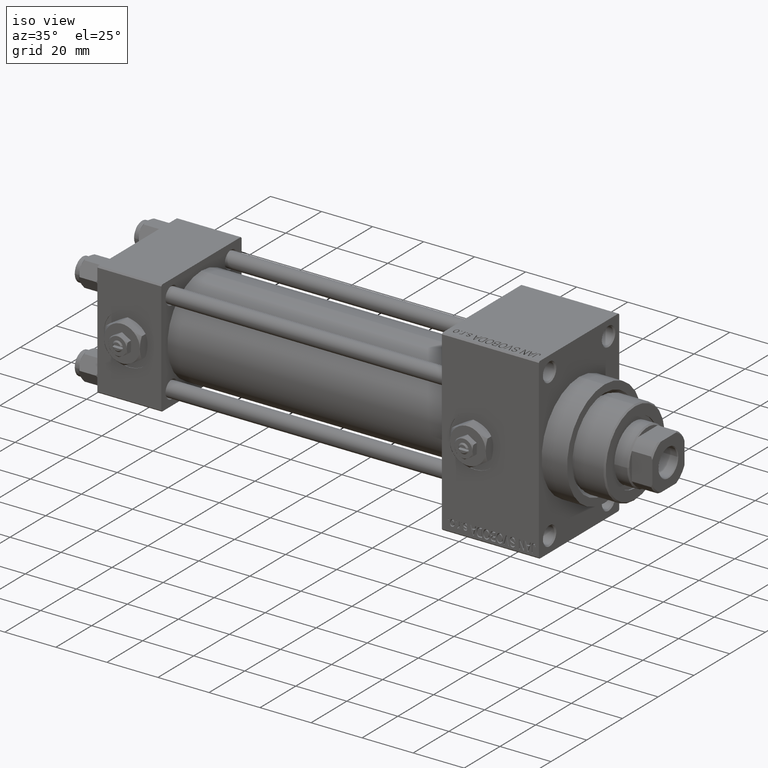
[diagram: clean part render]
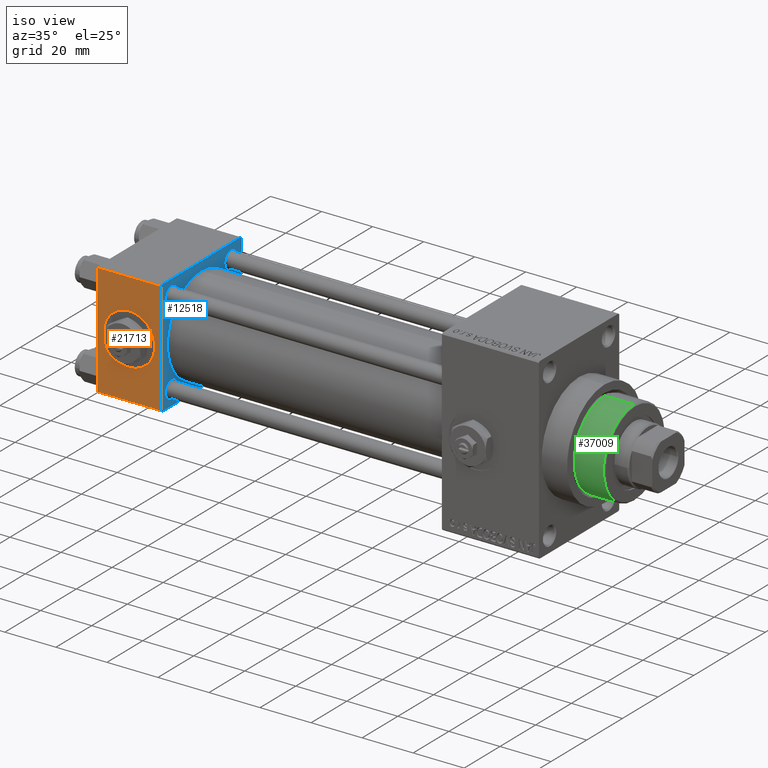
[diagram: same view with three faces highlighted in distinct colors, each labeled with its STEP entity id]
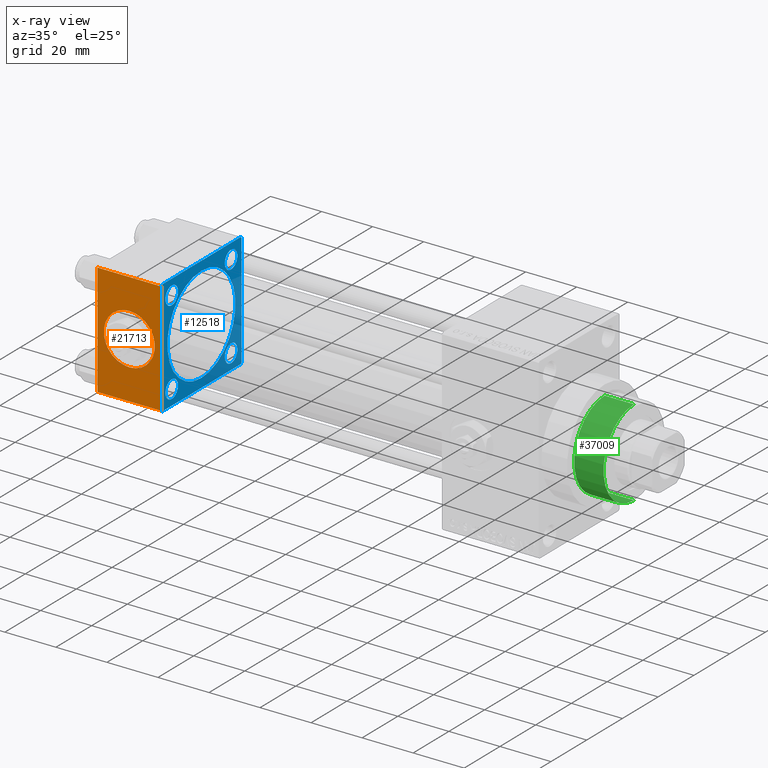
[diagram: x-ray of the same camera — body ghosted, the three highlighted faces saturated]
A machine part, iso view with three faces highlighted in distinct colors.
The next image is the same camera in x-ray (body ghosted, the three faces saturated) — at least one of them is partly hidden behind the body in this view.
Their STEP definitions:

[orange] entity #21713 — the highlighted planar face has unit normal (0, 1, 0).
#411 = LINE ( 'NONE', #19253, #14603 ) ;
#2524 = ORIENTED_EDGE ( 'NONE', *, *, #40350, .T. ) ;
#3118 = EDGE_CURVE ( 'NONE', #41661, #13308, #28669, .T. ) ;
#3855 = LINE ( 'NONE', #18969, #43486 ) ;
#4507 = DIRECTION ( 'NONE',  ( 0.000000000000000000, 0.000000000000000000, -1.000000000000000000 ) ) ;
#5462 = ORIENTED_EDGE ( 'NONE', *, *, #3118, .F. ) ;
#6568 = DIRECTION ( 'NONE',  ( 0.000000000000000000, 0.000000000000000000, -1.000000000000000000 ) ) ;
#8620 = ORIENTED_EDGE ( 'NONE', *, *, #15317, .T. ) ;
#8808 = EDGE_CURVE ( 'NONE', #47285, #42556, #411, .T. ) ;
#8970 = FACE_BOUND ( 'NONE', #37272, .T. ) ;
#9766 = AXIS2_PLACEMENT_3D ( 'NONE', #31551, #23348, #4507 ) ;
#9936 = PLANE ( 'NONE',  #23206 ) ;
#12933 = ORIENTED_EDGE ( 'NONE', *, *, #40334, .T. ) ;
#13308 = VERTEX_POINT ( 'NONE', #20649 ) ;
#14418 = EDGE_LOOP ( 'NONE', ( #8620, #12933, #35521, #2524 ) ) ;
#14603 = VECTOR ( 'NONE', #30205, 1000.000000000000000 ) ;
#15089 = CARTESIAN_POINT ( 'NONE',  ( 0.000000000000000000, -22.50000000000000000, 22.00000000000000000 ) ) ;
#15317 = EDGE_CURVE ( 'NONE', #15824, #15588, #48800, .T. ) ;
#15395 = CARTESIAN_POINT ( 'NONE',  ( 25.00000000000000000, -22.50000000000000000, -21.99999999999997158 ) ) ;
#15542 = DIRECTION ( 'NONE',  ( 0.000000000000000000, -1.000000000000000000, -8.673617379884036705E-17 ) ) ;
#15588 = VERTEX_POINT ( 'NONE', #40050 ) ;
#15824 = VERTEX_POINT ( 'NONE', #15089 ) ;
#18477 = CARTESIAN_POINT ( 'NONE',  ( 25.00000000000000000, -22.50000000000000000, 22.00000000000000000 ) ) ;
#18969 = CARTESIAN_POINT ( 'NONE',  ( 25.00000000000000000, -22.50000000000000000, -21.99999999999998579 ) ) ;
#19208 = DIRECTION ( 'NONE',  ( -1.000000000000000000, 0.000000000000000000, 0.000000000000000000 ) ) ;
#19253 = CARTESIAN_POINT ( 'NONE',  ( 25.00000000000000000, -22.50000000000000000, 22.50000000000000000 ) ) ;
#20649 = CARTESIAN_POINT ( 'NONE',  ( 12.50000000000000000, -22.50000000000000000, -9.999999999999996447 ) ) ;
#21648 = EDGE_CURVE ( 'NONE', #13308, #41661, #27981, .T. ) ;
#21713 = ADVANCED_FACE ( 'NONE', ( #8970, #36014 ), #9936, .F. ) ;
#22607 = ORIENTED_EDGE ( 'NONE', *, *, #21648, .F. ) ;
#23176 = LINE ( 'NONE', #18477, #40319 ) ;
#23206 = AXIS2_PLACEMENT_3D ( 'NONE', #24570, #40231, #28315 ) ;
#23223 = DIRECTION ( 'NONE',  ( 0.000000000000000000, 0.000000000000000000, -1.000000000000000000 ) ) ;
#23348 = DIRECTION ( 'NONE',  ( 0.000000000000000000, -1.000000000000000000, -8.673617379884036705E-17 ) ) ;
#24570 = CARTESIAN_POINT ( 'NONE',  ( 25.00000000000000000, -22.50000000000000000, 22.50000000000000000 ) ) ;
#27981 = CIRCLE ( 'NONE', #9766, 9.999999999999996447 ) ;
#28315 = DIRECTION ( 'NONE',  ( 0.000000000000000000, -0.000000000000000000, 1.000000000000000000 ) ) ;
#28669 = CIRCLE ( 'NONE', #45324, 9.999999999999996447 ) ;
#30205 = DIRECTION ( 'NONE',  ( 0.000000000000000000, 0.000000000000000000, -1.000000000000000000 ) ) ;
#31551 = CARTESIAN_POINT ( 'NONE',  ( 12.50000000000000000, -22.50000000000000000, 0.000000000000000000 ) ) ;
#31820 = CARTESIAN_POINT ( 'NONE',  ( 12.50000000000000178, -22.50000000000000000, 9.999999999999996447 ) ) ;
#33708 = CARTESIAN_POINT ( 'NONE',  ( 12.50000000000000000, -22.50000000000000000, 0.000000000000000000 ) ) ;
#34135 = DIRECTION ( 'NONE',  ( 1.000000000000000000, 0.000000000000000000, 0.000000000000000000 ) ) ;
#35521 = ORIENTED_EDGE ( 'NONE', *, *, #8808, .F. ) ;
#36014 = FACE_OUTER_BOUND ( 'NONE', #14418, .T. ) ;
#37272 = EDGE_LOOP ( 'NONE', ( #22607, #5462 ) ) ;
#38521 = CARTESIAN_POINT ( 'NONE',  ( 25.00000000000000000, -22.50000000000000000, 22.00000000000000000 ) ) ;
#39287 = VECTOR ( 'NONE', #6568, 1000.000000000000000 ) ;
#40050 = CARTESIAN_POINT ( 'NONE',  ( 0.000000000000000000, -22.50000000000000000, -21.99999999999997158 ) ) ;
#40231 = DIRECTION ( 'NONE',  ( -0.000000000000000000, 1.000000000000000000, 0.000000000000000000 ) ) ;
#40319 = VECTOR ( 'NONE', #19208, 1000.000000000000000 ) ;
#40334 = EDGE_CURVE ( 'NONE', #15588, #42556, #3855, .T. ) ;
#40350 = EDGE_CURVE ( 'NONE', #47285, #15824, #23176, .T. ) ;
#41661 = VERTEX_POINT ( 'NONE', #31820 ) ;
#42556 = VERTEX_POINT ( 'NONE', #15395 ) ;
#43486 = VECTOR ( 'NONE', #34135, 1000.000000000000000 ) ;
#45324 = AXIS2_PLACEMENT_3D ( 'NONE', #33708, #15542, #23223 ) ;
#47285 = VERTEX_POINT ( 'NONE', #38521 ) ;
#48554 = CARTESIAN_POINT ( 'NONE',  ( 0.000000000000000000, -22.50000000000000000, 22.50000000000000000 ) ) ;
#48800 = LINE ( 'NONE', #48554, #39287 ) ;

[blue] entity #12518 — the highlighted planar face has unit normal (-1, 0, 0).
#354 = DIRECTION ( 'NONE',  ( 0.000000000000000000, -1.000000000000000000, -2.312964634635742957E-16 ) ) ;
#411 = LINE ( 'NONE', #19253, #14603 ) ;
#599 = LINE ( 'NONE', #31108, #25355 ) ;
#1063 = DIRECTION ( 'NONE',  ( 0.000000000000000000, 0.000000000000000000, 1.000000000000000000 ) ) ;
#1310 = CARTESIAN_POINT ( 'NONE',  ( 25.00000000000000000, -16.59999999999999076, 16.60000000000000853 ) ) ;
#1448 = EDGE_CURVE ( 'NONE', #24298, #20267, #31002, .T. ) ;
#1452 = LINE ( 'NONE', #24733, #22638 ) ;
#1937 = EDGE_CURVE ( 'NONE', #4219, #38250, #12381, .T. ) ;
#2279 = EDGE_CURVE ( 'NONE', #15383, #17018, #38152, .T. ) ;
#2363 = CARTESIAN_POINT ( 'NONE',  ( 25.00000000000000000, 0.000000000000000000, 0.000000000000000000 ) ) ;
#2600 = FACE_BOUND ( 'NONE', #8181, .T. ) ;
#2809 = CIRCLE ( 'NONE', #35306, 3.499999999999978684 ) ;
#3257 = EDGE_LOOP ( 'NONE', ( #12565, #6426 ) ) ;
#4209 = CIRCLE ( 'NONE', #20834, 3.500000000000003109 ) ;
#4219 = VERTEX_POINT ( 'NONE', #32651 ) ;
#5897 = VECTOR ( 'NONE', #20512, 1000.000000000000000 ) ;
#6274 = CARTESIAN_POINT ( 'NONE',  ( 25.00000000000000000, -16.59999999999999076, -16.60000000000000853 ) ) ;
#6318 = CARTESIAN_POINT ( 'NONE',  ( 25.00000000000000000, 16.59999999999999787, 20.10000000000000853 ) ) ;
#6426 = ORIENTED_EDGE ( 'NONE', *, *, #15293, .T. ) ;
#6514 = DIRECTION ( 'NONE',  ( -0.000000000000000000, -0.7071067811865525687, -0.7071067811865425767 ) ) ;
#6539 = DIRECTION ( 'NONE',  ( -1.000000000000000000, 0.000000000000000000, -0.000000000000000000 ) ) ;
#6597 = ORIENTED_EDGE ( 'NONE', *, *, #18146, .T. ) ;
#6846 = ORIENTED_EDGE ( 'NONE', *, *, #1937, .T. ) ;
#8181 = EDGE_LOOP ( 'NONE', ( #38910, #40956 ) ) ;
#8324 = DIRECTION ( 'NONE',  ( 0.000000000000000000, 0.000000000000000000, 1.000000000000000000 ) ) ;
#8367 = EDGE_CURVE ( 'NONE', #24590, #47285, #32098, .T. ) ;
#8585 = CARTESIAN_POINT ( 'NONE',  ( 25.00000000000000000, 22.50000000000000000, 22.50000000000000355 ) ) ;
#8808 = EDGE_CURVE ( 'NONE', #47285, #42556, #411, .T. ) ;
#9014 = DIRECTION ( 'NONE',  ( -1.000000000000000000, 0.000000000000000000, -0.000000000000000000 ) ) ;
#9860 = CARTESIAN_POINT ( 'NONE',  ( 25.00000000000000000, -16.59999999999999076, 20.09999999999998721 ) ) ;
#9963 = VERTEX_POINT ( 'NONE', #26788 ) ;
#10260 = VECTOR ( 'NONE', #20155, 1000.000000000000000 ) ;
#10521 = DIRECTION ( 'NONE',  ( 1.000000000000000000, -0.000000000000000000, 0.000000000000000000 ) ) ;
#10582 = AXIS2_PLACEMENT_3D ( 'NONE', #22386, #17928, #48268 ) ;
#10813 = ORIENTED_EDGE ( 'NONE', *, *, #14890, .T. ) ;
#11864 = ORIENTED_EDGE ( 'NONE', *, *, #8808, .T. ) ;
#12048 = DIRECTION ( 'NONE',  ( 1.000000000000000000, -0.000000000000000000, 0.000000000000000000 ) ) ;
#12381 = LINE ( 'NONE', #42689, #27835 ) ;
#12423 = ORIENTED_EDGE ( 'NONE', *, *, #1448, .F. ) ;
#12518 = ADVANCED_FACE ( 'NONE', ( #20720, #2600, #21205, #36871, #21441, #39865 ), #29169, .F. ) ;
#12565 = ORIENTED_EDGE ( 'NONE', *, *, #19955, .T. ) ;
#13016 = ORIENTED_EDGE ( 'NONE', *, *, #28960, .F. ) ;
#13054 = CARTESIAN_POINT ( 'NONE',  ( 25.00000000000000000, 16.59999999999999787, -16.60000000000000497 ) ) ;
#13925 = ORIENTED_EDGE ( 'NONE', *, *, #44807, .F. ) ;
#14429 = VERTEX_POINT ( 'NONE', #6318 ) ;
#14603 = VECTOR ( 'NONE', #30205, 1000.000000000000000 ) ;
#14857 = VERTEX_POINT ( 'NONE', #9860 ) ;
#14890 = EDGE_CURVE ( 'NONE', #23423, #45100, #1452, .T. ) ;
#15293 = EDGE_CURVE ( 'NONE', #14857, #31397, #2809, .T. ) ;
#15347 = CARTESIAN_POINT ( 'NONE',  ( 24.99999999999999289, -2.752562955852396712E-16, -19.00000000000000000 ) ) ;
#15383 = VERTEX_POINT ( 'NONE', #42072 ) ;
#15395 = CARTESIAN_POINT ( 'NONE',  ( 25.00000000000000000, -22.50000000000000000, -21.99999999999997158 ) ) ;
#15771 = EDGE_LOOP ( 'NONE', ( #13016, #12423 ) ) ;
#15980 = ORIENTED_EDGE ( 'NONE', *, *, #42370, .F. ) ;
#16088 = DIRECTION ( 'NONE',  ( 0.000000000000000000, 0.000000000000000000, 1.000000000000000000 ) ) ;
#16262 = CARTESIAN_POINT ( 'NONE',  ( 25.00000000000000000, -21.99999999999997158, -22.50000000000000711 ) ) ;
#17018 = VERTEX_POINT ( 'NONE', #29008 ) ;
#17057 = CARTESIAN_POINT ( 'NONE',  ( 25.00000000000000000, -16.59999999999999076, 13.10000000000002807 ) ) ;
#17664 = DIRECTION ( 'NONE',  ( -1.000000000000000000, 0.000000000000000000, -0.000000000000000000 ) ) ;
#17691 = CARTESIAN_POINT ( 'NONE',  ( 25.00000000000000000, 16.59999999999999787, 16.60000000000000497 ) ) ;
#17928 = DIRECTION ( 'NONE',  ( -1.000000000000000000, 0.000000000000000000, -0.000000000000000000 ) ) ;
#18146 = EDGE_CURVE ( 'NONE', #36887, #9963, #48942, .T. ) ;
#18197 = DIRECTION ( 'NONE',  ( 0.000000000000000000, 0.000000000000000000, 1.000000000000000000 ) ) ;
#18618 = ORIENTED_EDGE ( 'NONE', *, *, #8367, .T. ) ;
#18828 = CIRCLE ( 'NONE', #30711, 3.499999999999978684 ) ;
#19091 = AXIS2_PLACEMENT_3D ( 'NONE', #13054, #43603, #47809 ) ;
#19253 = CARTESIAN_POINT ( 'NONE',  ( 25.00000000000000000, -22.50000000000000000, 22.50000000000000000 ) ) ;
#19664 = CARTESIAN_POINT ( 'NONE',  ( 25.00000000000000000, 22.50000000000000000, 22.50000000000000355 ) ) ;
#19768 = CARTESIAN_POINT ( 'NONE',  ( 25.00000000000000000, 21.99999999999999289, 22.50000000000000355 ) ) ;
#19955 = EDGE_CURVE ( 'NONE', #31397, #14857, #18828, .T. ) ;
#20155 = DIRECTION ( 'NONE',  ( 0.000000000000000000, 0.000000000000000000, -1.000000000000000000 ) ) ;
#20267 = VERTEX_POINT ( 'NONE', #28778 ) ;
#20512 = DIRECTION ( 'NONE',  ( 0.000000000000000000, 0.7071067811865426878, -0.7071067811865524577 ) ) ;
#20720 = FACE_BOUND ( 'NONE', #47684, .T. ) ;
#20834 = AXIS2_PLACEMENT_3D ( 'NONE', #17691, #6539, #21409 ) ;
#21205 = FACE_BOUND ( 'NONE', #3257, .T. ) ;
#21348 = CARTESIAN_POINT ( 'NONE',  ( 25.00000000000000000, 16.59999999999999787, 13.10000000000000142 ) ) ;
#21409 = DIRECTION ( 'NONE',  ( 0.000000000000000000, 0.000000000000000000, 1.000000000000000000 ) ) ;
#21441 = FACE_BOUND ( 'NONE', #15771, .T. ) ;
#21507 = ORIENTED_EDGE ( 'NONE', *, *, #27553, .T. ) ;
#21508 = EDGE_CURVE ( 'NONE', #41025, #14429, #4209, .T. ) ;
#22149 = ORIENTED_EDGE ( 'NONE', *, *, #38765, .T. ) ;
#22386 = CARTESIAN_POINT ( 'NONE',  ( 25.00000000000000000, 16.59999999999999787, 16.60000000000000497 ) ) ;
#22638 = VECTOR ( 'NONE', #47134, 1000.000000000000000 ) ;
#22739 = CARTESIAN_POINT ( 'NONE',  ( 25.00000000000000000, -21.99999999999997868, 22.50000000000000000 ) ) ;
#23423 = VERTEX_POINT ( 'NONE', #26555 ) ;
#23698 = DIRECTION ( 'NONE',  ( 0.000000000000000000, -1.000000000000000000, -7.709882115452476934E-17 ) ) ;
#23767 = DIRECTION ( 'NONE',  ( 0.000000000000000000, -0.7071067811865474617, 0.7071067811865474617 ) ) ;
#24298 = VERTEX_POINT ( 'NONE', #15347 ) ;
#24590 = VERTEX_POINT ( 'NONE', #22739 ) ;
#24733 = CARTESIAN_POINT ( 'NONE',  ( 25.00000000000000000, 22.50000000000000000, -21.99999999999998224 ) ) ;
#25355 = VECTOR ( 'NONE', #354, 1000.000000000000000 ) ;
#25644 = VECTOR ( 'NONE', #6514, 999.9999999999998863 ) ;
#25666 = DIRECTION ( 'NONE',  ( -1.000000000000000000, 0.000000000000000000, -0.000000000000000000 ) ) ;
#26035 = EDGE_CURVE ( 'NONE', #14429, #41025, #31975, .T. ) ;
#26555 = CARTESIAN_POINT ( 'NONE',  ( 25.00000000000000000, 21.99999999999999289, -22.49999999999999645 ) ) ;
#26605 = CARTESIAN_POINT ( 'NONE',  ( 25.00000000000000000, 22.50000000000000000, -21.99999999999996803 ) ) ;
#26687 = CARTESIAN_POINT ( 'NONE',  ( 24.99999999999999289, -2.602085213965210642E-15, 0.000000000000000000 ) ) ;
#26788 = CARTESIAN_POINT ( 'NONE',  ( 25.00000000000000000, -16.59999999999999076, -20.09999999999998366 ) ) ;
#27024 = CARTESIAN_POINT ( 'NONE',  ( 25.00000000000000000, 16.59999999999999787, -16.60000000000000497 ) ) ;
#27553 = EDGE_CURVE ( 'NONE', #42556, #30227, #28466, .T. ) ;
#27835 = VECTOR ( 'NONE', #23767, 1000.000000000000114 ) ;
#27977 = EDGE_LOOP ( 'NONE', ( #36898, #40457 ) ) ;
#28014 = DIRECTION ( 'NONE',  ( -1.000000000000000000, 0.000000000000000000, -0.000000000000000000 ) ) ;
#28138 = CARTESIAN_POINT ( 'NONE',  ( 25.00000000000000000, -22.50000000000000000, 22.00000000000000000 ) ) ;
#28466 = LINE ( 'NONE', #35431, #5897 ) ;
#28778 = CARTESIAN_POINT ( 'NONE',  ( 24.99999999999999289, -2.602085213965210642E-15, 19.00000000000000000 ) ) ;
#28960 = EDGE_CURVE ( 'NONE', #20267, #24298, #30483, .T. ) ;
#29008 = CARTESIAN_POINT ( 'NONE',  ( 25.00000000000000000, 16.59999999999999787, -13.10000000000000142 ) ) ;
#29169 = PLANE ( 'NONE',  #45541 ) ;
#30102 = CARTESIAN_POINT ( 'NONE',  ( 25.00000000000000000, -16.59999999999999076, -13.10000000000003162 ) ) ;
#30205 = DIRECTION ( 'NONE',  ( 0.000000000000000000, 0.000000000000000000, -1.000000000000000000 ) ) ;
#30227 = VERTEX_POINT ( 'NONE', #16262 ) ;
#30483 = CIRCLE ( 'NONE', #35254, 19.00000000000000000 ) ;
#30711 = AXIS2_PLACEMENT_3D ( 'NONE', #1310, #9014, #1063 ) ;
#31002 = CIRCLE ( 'NONE', #38934, 19.00000000000000000 ) ;
#31108 = CARTESIAN_POINT ( 'NONE',  ( 25.00000000000000000, 22.50000000000000000, -22.49999999999999645 ) ) ;
#31397 = VERTEX_POINT ( 'NONE', #17057 ) ;
#31456 = DIRECTION ( 'NONE',  ( -1.000000000000000000, 0.000000000000000000, -0.000000000000000000 ) ) ;
#31828 = LINE ( 'NONE', #19664, #10260 ) ;
#31975 = CIRCLE ( 'NONE', #10582, 3.500000000000003109 ) ;
#32098 = LINE ( 'NONE', #28138, #25644 ) ;
#32651 = CARTESIAN_POINT ( 'NONE',  ( 25.00000000000000000, 22.50000000000000000, 21.99999999999999645 ) ) ;
#32879 = DIRECTION ( 'NONE',  ( 0.000000000000000000, 0.000000000000000000, 1.000000000000000000 ) ) ;
#35195 = DIRECTION ( 'NONE',  ( 0.000000000000000000, 0.000000000000000000, 1.000000000000000000 ) ) ;
#35254 = AXIS2_PLACEMENT_3D ( 'NONE', #45293, #10521, #18197 ) ;
#35293 = EDGE_CURVE ( 'NONE', #38250, #24590, #42612, .T. ) ;
#35306 = AXIS2_PLACEMENT_3D ( 'NONE', #44567, #25666, #32879 ) ;
#35431 = CARTESIAN_POINT ( 'NONE',  ( 25.00000000000000000, -21.99999999999998579, -22.50000000000000711 ) ) ;
#36871 = FACE_BOUND ( 'NONE', #27977, .T. ) ;
#36887 = VERTEX_POINT ( 'NONE', #30102 ) ;
#36898 = ORIENTED_EDGE ( 'NONE', *, *, #21508, .T. ) ;
#37139 = AXIS2_PLACEMENT_3D ( 'NONE', #27024, #28014, #16088 ) ;
#37833 = AXIS2_PLACEMENT_3D ( 'NONE', #46386, #31456, #35195 ) ;
#38152 = CIRCLE ( 'NONE', #19091, 3.500000000000003109 ) ;
#38250 = VERTEX_POINT ( 'NONE', #19768 ) ;
#38521 = CARTESIAN_POINT ( 'NONE',  ( 25.00000000000000000, -22.50000000000000000, 22.00000000000000000 ) ) ;
#38765 = EDGE_CURVE ( 'NONE', #9963, #36887, #44262, .T. ) ;
#38910 = ORIENTED_EDGE ( 'NONE', *, *, #2279, .T. ) ;
#38934 = AXIS2_PLACEMENT_3D ( 'NONE', #26687, #12048, #8324 ) ;
#38954 = EDGE_LOOP ( 'NONE', ( #13925, #10813, #15980, #6846, #43150, #18618, #11864, #21507 ) ) ;
#39865 = FACE_OUTER_BOUND ( 'NONE', #38954, .T. ) ;
#40457 = ORIENTED_EDGE ( 'NONE', *, *, #26035, .T. ) ;
#40956 = ORIENTED_EDGE ( 'NONE', *, *, #48536, .T. ) ;
#41025 = VERTEX_POINT ( 'NONE', #21348 ) ;
#41038 = DIRECTION ( 'NONE',  ( 0.000000000000000000, 0.000000000000000000, 1.000000000000000000 ) ) ;
#41857 = VECTOR ( 'NONE', #23698, 1000.000000000000000 ) ;
#42072 = CARTESIAN_POINT ( 'NONE',  ( 25.00000000000000000, 16.59999999999999787, -20.10000000000000853 ) ) ;
#42370 = EDGE_CURVE ( 'NONE', #4219, #45100, #31828, .T. ) ;
#42556 = VERTEX_POINT ( 'NONE', #15395 ) ;
#42612 = LINE ( 'NONE', #8585, #41857 ) ;
#42689 = CARTESIAN_POINT ( 'NONE',  ( 25.00000000000000000, 21.99999999999999289, 22.50000000000000355 ) ) ;
#43150 = ORIENTED_EDGE ( 'NONE', *, *, #35293, .T. ) ;
#43498 = CIRCLE ( 'NONE', #37139, 3.500000000000003109 ) ;
#43603 = DIRECTION ( 'NONE',  ( -1.000000000000000000, 0.000000000000000000, -0.000000000000000000 ) ) ;
#43840 = DIRECTION ( 'NONE',  ( -0.000000000000000000, 0.000000000000000000, 1.000000000000000000 ) ) ;
#44088 = DIRECTION ( 'NONE',  ( -1.000000000000000000, 0.000000000000000000, -0.000000000000000000 ) ) ;
#44262 = CIRCLE ( 'NONE', #45826, 3.499999999999975131 ) ;
#44567 = CARTESIAN_POINT ( 'NONE',  ( 25.00000000000000000, -16.59999999999999076, 16.60000000000000853 ) ) ;
#44807 = EDGE_CURVE ( 'NONE', #23423, #30227, #599, .T. ) ;
#45100 = VERTEX_POINT ( 'NONE', #26605 ) ;
#45293 = CARTESIAN_POINT ( 'NONE',  ( 24.99999999999999289, -2.602085213965210642E-15, 0.000000000000000000 ) ) ;
#45541 = AXIS2_PLACEMENT_3D ( 'NONE', #2363, #44088, #43840 ) ;
#45826 = AXIS2_PLACEMENT_3D ( 'NONE', #6274, #17664, #41038 ) ;
#46386 = CARTESIAN_POINT ( 'NONE',  ( 25.00000000000000000, -16.59999999999999076, -16.60000000000000853 ) ) ;
#47134 = DIRECTION ( 'NONE',  ( -0.000000000000000000, 0.7071067811865426878, 0.7071067811865524577 ) ) ;
#47285 = VERTEX_POINT ( 'NONE', #38521 ) ;
#47684 = EDGE_LOOP ( 'NONE', ( #22149, #6597 ) ) ;
#47809 = DIRECTION ( 'NONE',  ( 0.000000000000000000, 0.000000000000000000, 1.000000000000000000 ) ) ;
#48268 = DIRECTION ( 'NONE',  ( 0.000000000000000000, 0.000000000000000000, 1.000000000000000000 ) ) ;
#48536 = EDGE_CURVE ( 'NONE', #17018, #15383, #43498, .T. ) ;
#48942 = CIRCLE ( 'NONE', #37833, 3.499999999999975131 ) ;

[green] entity #37009 — the highlighted cylindrical surface (partial cylindrical patch) has radius 17 mm, axis along (-1, 0, 0).
#2999 = DIRECTION ( 'NONE',  ( 1.000000000000000000, 0.000000000000000000, 0.000000000000000000 ) ) ;
#4053 = AXIS2_PLACEMENT_3D ( 'NONE', #6467, #21832, #2999 ) ;
#4522 = AXIS2_PLACEMENT_3D ( 'NONE', #40489, #18352, #40730 ) ;
#4837 = CIRCLE ( 'NONE', #4053, 17.00000000000000000 ) ;
#6467 = CARTESIAN_POINT ( 'NONE',  ( 0.000000000000000000, 0.000000000000000000, 43.25999999999999801 ) ) ;
#6950 = CIRCLE ( 'NONE', #42658, 17.00000000000000000 ) ;
#9346 = VECTOR ( 'NONE', #15715, 1000.000000000000000 ) ;
#12053 = EDGE_CURVE ( 'NONE', #27218, #25026, #26531, .T. ) ;
#15715 = DIRECTION ( 'NONE',  ( -0.000000000000000000, -0.000000000000000000, -1.000000000000000000 ) ) ;
#16106 = CARTESIAN_POINT ( 'NONE',  ( -17.00000000000000000, 0.000000000000000000, 54.76000000000001222 ) ) ;
#18352 = DIRECTION ( 'NONE',  ( -0.000000000000000000, -0.000000000000000000, -1.000000000000000000 ) ) ;
#19769 = EDGE_LOOP ( 'NONE', ( #37641, #44929, #45332, #45608 ) ) ;
#20557 = EDGE_CURVE ( 'NONE', #27218, #28599, #6950, .T. ) ;
#21148 = CARTESIAN_POINT ( 'NONE',  ( -17.00000000000000000, 0.000000000000000000, 43.25999999999999801 ) ) ;
#21724 = CARTESIAN_POINT ( 'NONE',  ( 17.00000000000000000, 2.081899558550500280E-15, 54.76000000000001222 ) ) ;
#21832 = DIRECTION ( 'NONE',  ( 0.000000000000000000, 0.000000000000000000, 1.000000000000000000 ) ) ;
#23161 = VERTEX_POINT ( 'NONE', #36388 ) ;
#25026 = VERTEX_POINT ( 'NONE', #21148 ) ;
#26531 = LINE ( 'NONE', #41700, #43934 ) ;
#27218 = VERTEX_POINT ( 'NONE', #16106 ) ;
#28599 = VERTEX_POINT ( 'NONE', #21724 ) ;
#28814 = FACE_OUTER_BOUND ( 'NONE', #19769, .T. ) ;
#30612 = LINE ( 'NONE', #41818, #9346 ) ;
#35592 = EDGE_CURVE ( 'NONE', #28599, #23161, #30612, .T. ) ;
#36263 = CYLINDRICAL_SURFACE ( 'NONE', #4522, 17.00000000000000000 ) ;
#36388 = CARTESIAN_POINT ( 'NONE',  ( 17.00000000000000000, 2.081899558550500280E-15, 43.25999999999999801 ) ) ;
#37009 = ADVANCED_FACE ( 'NONE', ( #28814 ), #36263, .T. ) ;
#37641 = ORIENTED_EDGE ( 'NONE', *, *, #20557, .T. ) ;
#37732 = DIRECTION ( 'NONE',  ( -0.000000000000000000, -0.000000000000000000, -1.000000000000000000 ) ) ;
#38932 = DIRECTION ( 'NONE',  ( 0.000000000000000000, 0.000000000000000000, -1.000000000000000000 ) ) ;
#40489 = CARTESIAN_POINT ( 'NONE',  ( 0.000000000000000000, 0.000000000000000000, 55.26000000000000512 ) ) ;
#40730 = DIRECTION ( 'NONE',  ( -1.000000000000000000, 0.000000000000000000, 0.000000000000000000 ) ) ;
#41700 = CARTESIAN_POINT ( 'NONE',  ( -17.00000000000000000, 0.000000000000000000, 55.26000000000000512 ) ) ;
#41818 = CARTESIAN_POINT ( 'NONE',  ( 17.00000000000000000, 2.081899558550500280E-15, 55.26000000000000512 ) ) ;
#42431 = DIRECTION ( 'NONE',  ( 1.000000000000000000, 0.000000000000000000, 0.000000000000000000 ) ) ;
#42658 = AXIS2_PLACEMENT_3D ( 'NONE', #46148, #38932, #42431 ) ;
#43934 = VECTOR ( 'NONE', #37732, 1000.000000000000000 ) ;
#44929 = ORIENTED_EDGE ( 'NONE', *, *, #35592, .T. ) ;
#45332 = ORIENTED_EDGE ( 'NONE', *, *, #46110, .T. ) ;
#45608 = ORIENTED_EDGE ( 'NONE', *, *, #12053, .F. ) ;
#46110 = EDGE_CURVE ( 'NONE', #23161, #25026, #4837, .T. ) ;
#46148 = CARTESIAN_POINT ( 'NONE',  ( 0.000000000000000000, 0.000000000000000000, 54.76000000000001222 ) ) ;